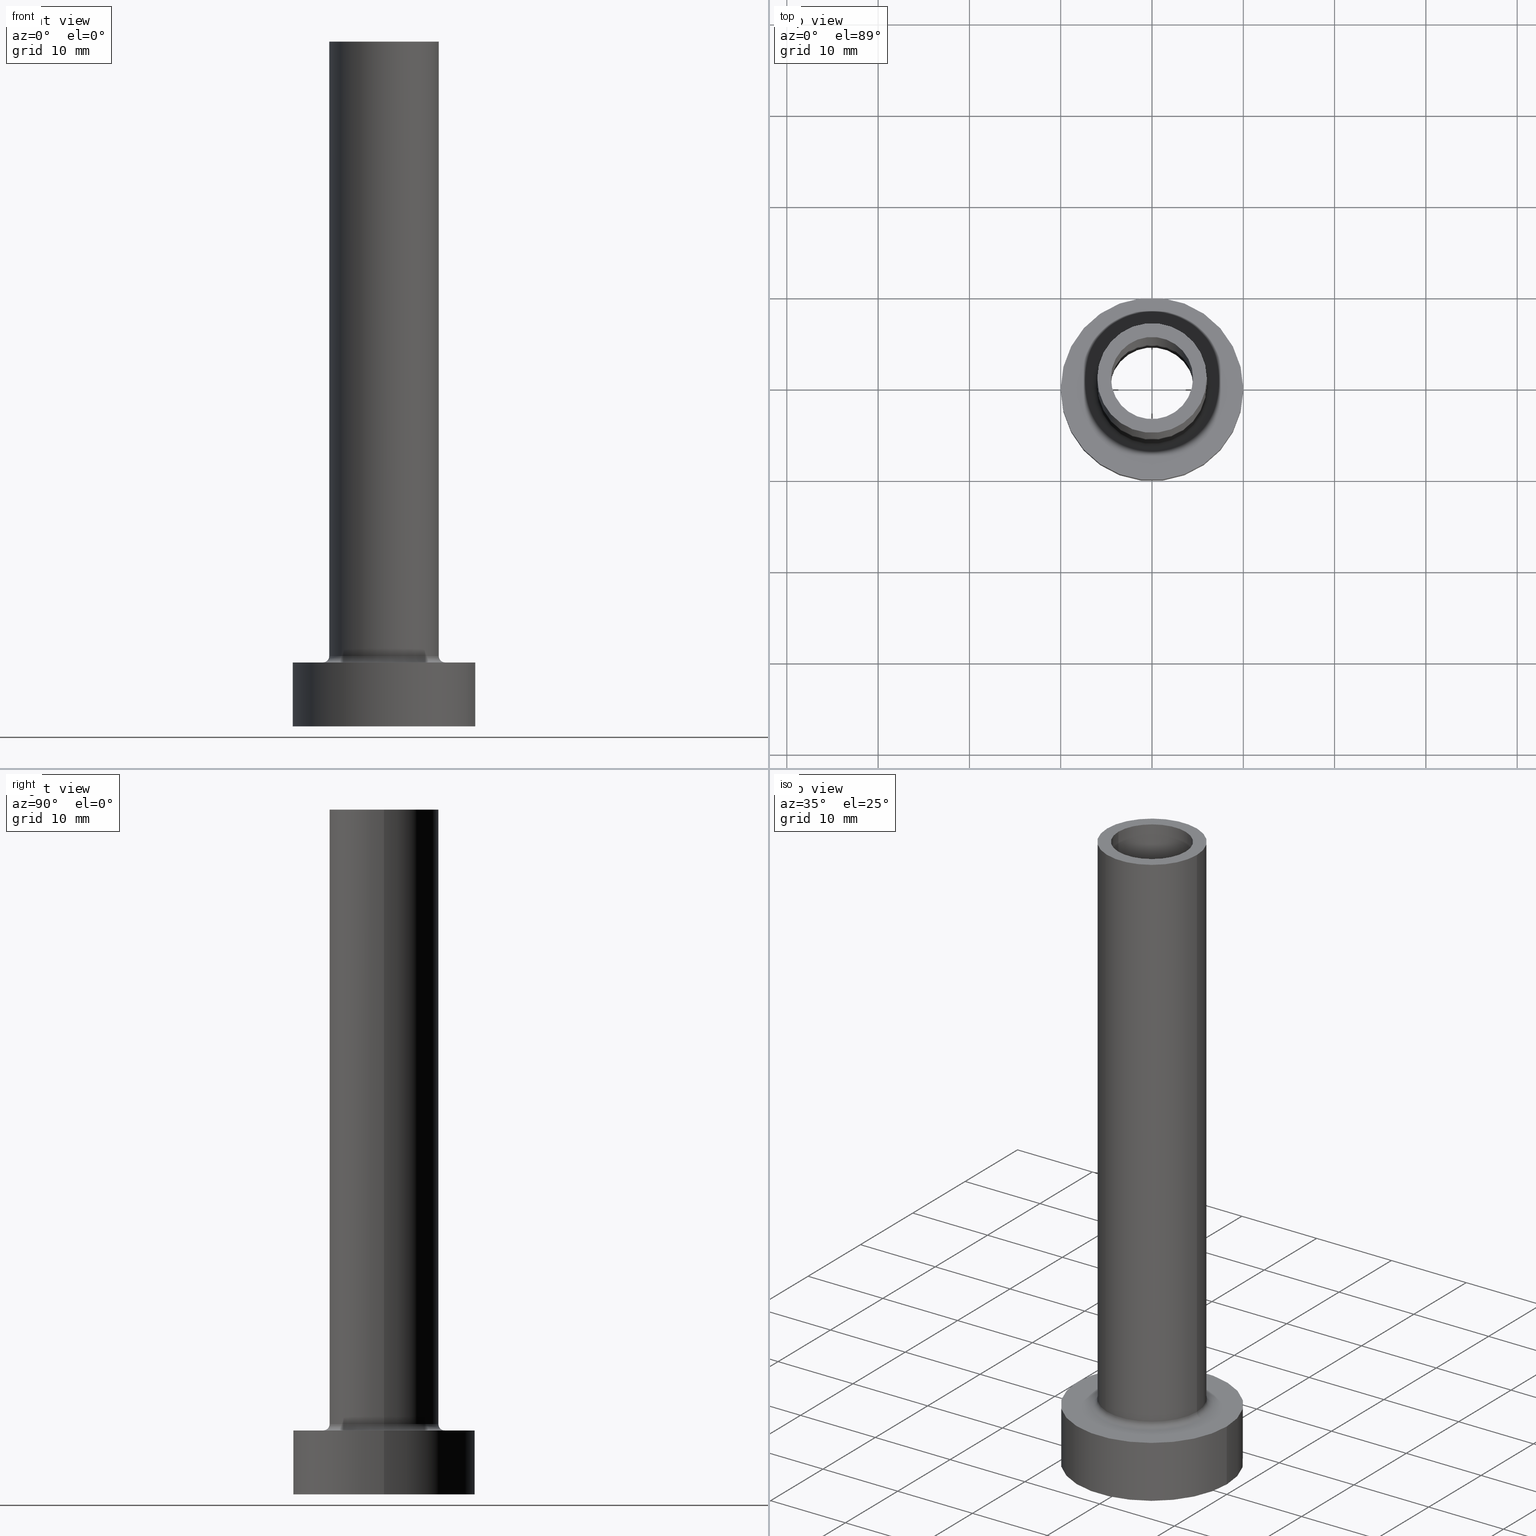
[diagram: canonical four-view strip — front | top / right | iso, engineering-drawing reading convention]
A machine part, canonical four-view strip (front | top / right | iso — engineering-drawing reading convention). The complete STEP part file that produces these views, byte-faithful:
ISO-10303-21;
HEADER;
FILE_DESCRIPTION (( 'STEP AP203' ),
    '1' );
FILE_NAME ('8d70.STEP',
    '2023-02-13T11:04:13',
    ( '' ),
    ( '' ),
    'SwSTEP 2.0',
    'SolidWorks 2019',
    '' );
FILE_SCHEMA (( 'CONFIG_CONTROL_DESIGN' ));
ENDSEC;

DATA;
#1 = EDGE_CURVE ( 'NONE', #113, #174, #399, .T. ) ;
#2 = DIRECTION ( 'NONE',  ( 0.000000000000000000, 0.000000000000000000, 1.000000000000000000 ) ) ;
#3 = VERTEX_POINT ( 'NONE', #38 ) ;
#4 = DIRECTION ( 'NONE',  ( 0.000000000000000000, 0.000000000000000000, 1.000000000000000000 ) ) ;
#5 = DIRECTION ( 'NONE',  ( -1.000000000000000000, 0.000000000000000000, 0.000000000000000000 ) ) ;
#6 = ORIENTED_EDGE ( 'NONE', *, *, #360, .T. ) ;
#7 = EDGE_CURVE ( 'NONE', #74, #300, #407, .T. ) ;
#8 = CARTESIAN_POINT ( 'NONE',  ( 0.000000000000000000, 0.000000000000000000, 75.00000000000001421 ) ) ;
#9 = PRODUCT_DEFINITION_SHAPE ( 'NONE', 'NONE',  #164 ) ;
#10 = COORDINATED_UNIVERSAL_TIME_OFFSET ( 1, 0, .AHEAD. ) ;
#11 = DIRECTION ( 'NONE',  ( 0.000000000000000000, 0.000000000000000000, 1.000000000000000000 ) ) ;
#12 = CARTESIAN_POINT ( 'NONE',  ( 0.000000000000000000, 0.000000000000000000, 0.000000000000000000 ) ) ;
#13 = ORIENTED_EDGE ( 'NONE', *, *, #341, .T. ) ;
#14 = FACE_OUTER_BOUND ( 'NONE', #211, .T. ) ;
#15 = EDGE_CURVE ( 'NONE', #172, #136, #246, .T. ) ;
#16 = AXIS2_PLACEMENT_3D ( 'NONE', #168, #448, #234 ) ;
#17 = DIRECTION ( 'NONE',  ( -0.000000000000000000, -0.000000000000000000, -1.000000000000000000 ) ) ;
#18 = CARTESIAN_POINT ( 'NONE',  ( 0.000000000000000000, 0.000000000000000000, 43.15218613006980064 ) ) ;
#19 = ORIENTED_EDGE ( 'NONE', *, *, #426, .F. ) ;
#20 = EDGE_CURVE ( 'NONE', #174, #113, #126, .T. ) ;
#21 = DIRECTION ( 'NONE',  ( -1.000000000000000000, 0.000000000000000000, 0.000000000000000000 ) ) ;
#22 = CARTESIAN_POINT ( 'NONE',  ( 0.000000000000000000, 0.000000000000000000, 7.000000000000000000 ) ) ;
#23 = PERSON_AND_ORGANIZATION ( #155, #36 ) ;
#24 = FACE_OUTER_BOUND ( 'NONE', #241, .T. ) ;
#25 = ADVANCED_BREP_SHAPE_REPRESENTATION ( '8d70', ( #404, #207 ), #193 ) ;
#26 = CIRCLE ( 'NONE', #185, 4.500000000000000000 ) ;
#27 = FACE_OUTER_BOUND ( 'NONE', #346, .T. ) ;
#28 = EDGE_CURVE ( 'NONE', #86, #349, #459, .T. ) ;
#29 = ORIENTED_EDGE ( 'NONE', *, *, #141, .T. ) ;
#30 = CARTESIAN_POINT ( 'NONE',  ( 0.000000000000000000, 0.000000000000000000, 7.000000000000000000 ) ) ;
#31 = ORIENTED_EDGE ( 'NONE', *, *, #323, .T. ) ;
#32 = DESIGN_CONTEXT ( 'detailed design', #253, 'design' ) ;
#33 = DIRECTION ( 'NONE',  ( 1.000000000000000000, 0.000000000000000000, 0.000000000000000000 ) ) ;
#34 = EDGE_LOOP ( 'NONE', ( #56, #68, #6, #461 ) ) ;
#35 = EDGE_CURVE ( 'NONE', #330, #441, #316, .T. ) ;
#36 = ORGANIZATION ( 'NEUR�EN�', 'NEUR�EN�', '' ) ;
#37 = CIRCLE ( 'NONE', #293, 4.650000000000000355 ) ;
#38 = CARTESIAN_POINT ( 'NONE',  ( -6.000000000000000888, 0.000000000000000000, 7.699999999999998401 ) ) ;
#39 = AXIS2_PLACEMENT_3D ( 'NONE', #208, #279, #345 ) ;
#40 = ORIENTED_EDGE ( 'NONE', *, *, #35, .T. ) ;
#41 = DIRECTION ( 'NONE',  ( 1.000000000000000000, 0.000000000000000000, -0.000000000000000000 ) ) ;
#42 = VERTEX_POINT ( 'NONE', #179 ) ;
#43 = APPROVAL_STATUS ( 'not_yet_approved' ) ;
#44 = DIRECTION ( 'NONE',  ( 0.000000000000000000, 0.000000000000000000, -1.000000000000000000 ) ) ;
#45 = CC_DESIGN_DATE_AND_TIME_ASSIGNMENT ( #259, #153, ( #398 ) ) ;
#46 = CARTESIAN_POINT ( 'NONE',  ( 10.00000000000000000, 1.224646799147353256E-15, 7.000000000000000000 ) ) ;
#47 = PERSON_AND_ORGANIZATION ( #155, #36 ) ;
#48 = CARTESIAN_POINT ( 'NONE',  ( 0.000000000000000000, 0.000000000000000000, 30.00000000000001421 ) ) ;
#49 = DIRECTION ( 'NONE',  ( 0.000000000000000000, 0.000000000000000000, -1.000000000000000000 ) ) ;
#50 = EDGE_CURVE ( 'NONE', #3, #391, #178, .T. ) ;
#51 = CYLINDRICAL_SURFACE ( 'NONE', #152, 4.650000000000000355 ) ;
#52 = APPROVAL_PERSON_ORGANIZATION ( #47, #263, #76 ) ;
#53 = ORIENTED_EDGE ( 'NONE', *, *, #20, .F. ) ;
#54 = AXIS2_PLACEMENT_3D ( 'NONE', #327, #80, #294 ) ;
#55 = SECURITY_CLASSIFICATION_LEVEL ( 'unclassified' ) ;
#56 = ORIENTED_EDGE ( 'NONE', *, *, #157, .F. ) ;
#57 = CC_DESIGN_PERSON_AND_ORGANIZATION_ASSIGNMENT ( #79, #321, ( #335 ) ) ;
#58 = CARTESIAN_POINT ( 'NONE',  ( 0.000000000000000000, 0.000000000000000000, 75.00000000000001421 ) ) ;
#59 = AXIS2_PLACEMENT_3D ( 'NONE', #107, #69, #216 ) ;
#60 = CC_DESIGN_DATE_AND_TIME_ASSIGNMENT ( #96, #142, ( #164 ) ) ;
#61 = CARTESIAN_POINT ( 'NONE',  ( 6.700000000000001066, 0.000000000000000000, 6.999999999999999112 ) ) ;
#62 = ORIENTED_EDGE ( 'NONE', *, *, #1, .F. ) ;
#63 = CIRCLE ( 'NONE', #39, 6.000000000000000888 ) ;
#64 = CARTESIAN_POINT ( 'NONE',  ( -4.650000000000000355, 0.000000000000000000, 30.00000000000001421 ) ) ;
#65 = ORIENTED_EDGE ( 'NONE', *, *, #50, .T. ) ;
#66 = CARTESIAN_POINT ( 'NONE',  ( -6.700000000000001066, 8.205133554287267548E-16, 7.699999999999998401 ) ) ;
#67 = EDGE_CURVE ( 'NONE', #274, #125, #37, .T. ) ;
#68 = ORIENTED_EDGE ( 'NONE', *, *, #67, .T. ) ;
#69 = DIRECTION ( 'NONE',  ( -0.000000000000000000, -0.000000000000000000, -1.000000000000000000 ) ) ;
#70 = ORIENTED_EDGE ( 'NONE', *, *, #235, .F. ) ;
#71 = CC_DESIGN_APPROVAL ( #123, ( #164 ) ) ;
#72 = CARTESIAN_POINT ( 'NONE',  ( 0.000000000000000000, 0.000000000000000000, 0.000000000000000000 ) ) ;
#73 = AXIS2_PLACEMENT_3D ( 'NONE', #48, #395, #191 ) ;
#74 = VERTEX_POINT ( 'NONE', #240 ) ;
#75 = FACE_OUTER_BOUND ( 'NONE', #378, .T. ) ;
#76 = APPROVAL_ROLE ( '' ) ;
#77 = ADVANCED_FACE ( 'NONE', ( #27 ), #173, .T. ) ;
#78 = DIRECTION ( 'NONE',  ( 1.000000000000000000, 0.000000000000000000, 0.000000000000000000 ) ) ;
#79 = PERSON_AND_ORGANIZATION ( #155, #36 ) ;
#80 = DIRECTION ( 'NONE',  ( 0.000000000000000000, -1.000000000000000000, 0.000000000000000000 ) ) ;
#81 = VECTOR ( 'NONE', #120, 1000.000000000000000 ) ;
#82 = PERSON_AND_ORGANIZATION ( #155, #36 ) ;
#83 = CARTESIAN_POINT ( 'NONE',  ( 0.000000000000000000, 0.000000000000000000, 7.699999999999998401 ) ) ;
#84 = EDGE_CURVE ( 'NONE', #300, #172, #204, .T. ) ;
#85 = DIRECTION ( 'NONE',  ( -1.000000000000000000, 0.000000000000000000, 0.000000000000000000 ) ) ;
#86 = VERTEX_POINT ( 'NONE', #452 ) ;
#87 = VECTOR ( 'NONE', #17, 1000.000000000000000 ) ;
#88 = ORIENTED_EDGE ( 'NONE', *, *, #189, .F. ) ;
#89 = CC_DESIGN_PERSON_AND_ORGANIZATION_ASSIGNMENT ( #23, #347, ( #164 ) ) ;
#90 = LINE ( 'NONE', #165, #270 ) ;
#91 = ORIENTED_EDGE ( 'NONE', *, *, #225, .F. ) ;
#92 = DIRECTION ( 'NONE',  ( 0.000000000000000000, 0.000000000000000000, -1.000000000000000000 ) ) ;
#93 = DIRECTION ( 'NONE',  ( -0.000000000000000000, -0.000000000000000000, -1.000000000000000000 ) ) ;
#94 = VECTOR ( 'NONE', #98, 1000.000000000000000 ) ;
#95 = ADVANCED_FACE ( 'NONE', ( #460 ), #244, .T. ) ;
#96 = DATE_AND_TIME ( #101, #331 ) ;
#97 = CARTESIAN_POINT ( 'NONE',  ( 0.000000000000000000, 0.000000000000000000, 7.699999999999998401 ) ) ;
#98 = DIRECTION ( 'NONE',  ( -0.000000000000000000, -0.000000000000000000, -1.000000000000000000 ) ) ;
#99 = ORIENTED_EDGE ( 'NONE', *, *, #84, .F. ) ;
#100 = CC_DESIGN_APPROVAL ( #283, ( #335 ) ) ;
#101 = CALENDAR_DATE ( 2023, 13, 2 ) ;
#102 = ADVANCED_FACE ( 'NONE', ( #24 ), #166, .F. ) ;
#103 = CARTESIAN_POINT ( 'NONE',  ( 0.000000000000000000, 0.000000000000000000, 7.699999999999998401 ) ) ;
#104 = VERTEX_POINT ( 'NONE', #61 ) ;
#105 = APPROVAL_DATE_TIME ( #421, #123 ) ;
#106 = CARTESIAN_POINT ( 'NONE',  ( 0.000000000000000000, 0.000000000000000000, 75.00000000000001421 ) ) ;
#107 = CARTESIAN_POINT ( 'NONE',  ( 0.000000000000000000, 0.000000000000000000, 0.000000000000000000 ) ) ;
#108 = LOCAL_TIME ( 12, 4, 13.00000000000000000, #197 ) ;
#109 = DIRECTION ( 'NONE',  ( 0.000000000000000000, 0.000000000000000000, 1.000000000000000000 ) ) ;
#110 = ORIENTED_EDGE ( 'NONE', *, *, #67, .F. ) ;
#111 = EDGE_CURVE ( 'NONE', #430, #338, #63, .T. ) ;
#112 = FACE_OUTER_BOUND ( 'NONE', #285, .T. ) ;
#113 = VERTEX_POINT ( 'NONE', #170 ) ;
#114 = PERSON_AND_ORGANIZATION ( #155, #36 ) ;
#115 = FACE_BOUND ( 'NONE', #409, .T. ) ;
#116 = CARTESIAN_POINT ( 'NONE',  ( 0.000000000000000000, 0.000000000000000000, 75.00000000000001421 ) ) ;
#117 = EDGE_CURVE ( 'NONE', #338, #3, #139, .T. ) ;
#118 = AXIS2_PLACEMENT_3D ( 'NONE', #30, #351, #377 ) ;
#119 = EDGE_LOOP ( 'NONE', ( #91, #110 ) ) ;
#120 = DIRECTION ( 'NONE',  ( 0.000000000000000000, 0.000000000000000000, -1.000000000000000000 ) ) ;
#121 =( LENGTH_UNIT ( ) NAMED_UNIT ( * ) SI_UNIT ( .MILLI., .METRE. ) );
#122 = ORIENTED_EDGE ( 'NONE', *, *, #141, .F. ) ;
#123 = APPROVAL ( #450, 'NEUR�EN�' ) ;
#124 =( NAMED_UNIT ( * ) PLANE_ANGLE_UNIT ( ) SI_UNIT ( $, .RADIAN. ) );
#125 = VERTEX_POINT ( 'NONE', #64 ) ;
#126 = CIRCLE ( 'NONE', #281, 10.00000000000000000 ) ;
#127 = CIRCLE ( 'NONE', #383, 6.000000000000000888 ) ;
#128 = CARTESIAN_POINT ( 'NONE',  ( 0.000000000000000000, 0.000000000000000000, 75.00000000000001421 ) ) ;
#129 = VECTOR ( 'NONE', #49, 1000.000000000000000 ) ;
#130 = AXIS2_PLACEMENT_3D ( 'NONE', #18, #265, #440 ) ;
#131 = CARTESIAN_POINT ( 'NONE',  ( 0.000000000000000000, 0.000000000000000000, 75.00000000000001421 ) ) ;
#132 = CYLINDRICAL_SURFACE ( 'NONE', #428, 4.500000000000000000 ) ;
#133 = CC_DESIGN_PERSON_AND_ORGANIZATION_ASSIGNMENT ( #82, #291, ( #398 ) ) ;
#134 = CIRCLE ( 'NONE', #337, 4.650000000000000355 ) ;
#135 = CARTESIAN_POINT ( 'NONE',  ( 0.000000000000000000, 0.000000000000000000, 75.00000000000001421 ) ) ;
#136 = VERTEX_POINT ( 'NONE', #419 ) ;
#137 = AXIS2_PLACEMENT_3D ( 'NONE', #288, #402, #227 ) ;
#138 = DATE_AND_TIME ( #344, #243 ) ;
#139 = LINE ( 'NONE', #417, #94 ) ;
#140 = ORIENTED_EDGE ( 'NONE', *, *, #406, .F. ) ;
#141 = EDGE_CURVE ( 'NONE', #391, #3, #127, .T. ) ;
#142 = DATE_TIME_ROLE ( 'creation_date' ) ;
#143 = DIRECTION ( 'NONE',  ( -1.000000000000000000, 0.000000000000000000, 0.000000000000000000 ) ) ;
#144 = ORIENTED_EDGE ( 'NONE', *, *, #20, .T. ) ;
#145 = TOROIDAL_SURFACE ( 'NONE', #451, 6.700000000000001066, 0.6999999999999999556 ) ;
#146 = DIRECTION ( 'NONE',  ( -0.000000000000000000, -0.000000000000000000, -1.000000000000000000 ) ) ;
#147 = ORIENTED_EDGE ( 'NONE', *, *, #225, .T. ) ;
#148 = EDGE_LOOP ( 'NONE', ( #151, #457 ) ) ;
#149 = CARTESIAN_POINT ( 'NONE',  ( 0.000000000000000000, 0.000000000000000000, 30.00000000000001421 ) ) ;
#150 = EDGE_CURVE ( 'NONE', #3, #42, #260, .T. ) ;
#151 = ORIENTED_EDGE ( 'NONE', *, *, #7, .F. ) ;
#152 = AXIS2_PLACEMENT_3D ( 'NONE', #297, #194, #161 ) ;
#153 = DATE_TIME_ROLE ( 'classification_date' ) ;
#154 = FACE_OUTER_BOUND ( 'NONE', #219, .T. ) ;
#155 = PERSON ( 'NEUR�EN�', 'NEUR�EN�', 'NEUR�EN�', ('NEUR�EN�'), ('NEUR�EN�'), ('NEUR�EN�') ) ;
#156 = CARTESIAN_POINT ( 'NONE',  ( 4.650000000000000355, 5.694607616035192869E-16, 43.15218613006980064 ) ) ;
#157 = EDGE_CURVE ( 'NONE', #274, #86, #357, .T. ) ;
#158 = CARTESIAN_POINT ( 'NONE',  ( 0.000000000000000000, 0.000000000000000000, 7.000000000000000000 ) ) ;
#159 = LINE ( 'NONE', #361, #129 ) ;
#160 = AXIS2_PLACEMENT_3D ( 'NONE', #135, #146, #311 ) ;
#161 = DIRECTION ( 'NONE',  ( -1.000000000000000000, 0.000000000000000000, 0.000000000000000000 ) ) ;
#162 = ORIENTED_EDGE ( 'NONE', *, *, #111, .F. ) ;
#163 = FACE_OUTER_BOUND ( 'NONE', #289, .T. ) ;
#164 = PRODUCT_DEFINITION ( 'NEZN�M�', '', #335, #32 ) ;
#165 = CARTESIAN_POINT ( 'NONE',  ( -10.00000000000000000, 0.000000000000000000, 7.000000000000000000 ) ) ;
#166 = TOROIDAL_SURFACE ( 'NONE', #373, 6.700000000000001066, 0.6999999999999999556 ) ;
#167 = CARTESIAN_POINT ( 'NONE',  ( 10.00000000000000000, 1.224646799147353256E-15, 7.000000000000000000 ) ) ;
#168 = CARTESIAN_POINT ( 'NONE',  ( 0.000000000000000000, 0.000000000000000000, 7.000000000000000000 ) ) ;
#169 = MECHANICAL_CONTEXT ( 'NONE', #442, 'mechanical' ) ;
#170 = CARTESIAN_POINT ( 'NONE',  ( 10.00000000000000000, 1.224646799147353256E-15, 0.000000000000000000 ) ) ;
#171 = EDGE_CURVE ( 'NONE', #136, #172, #332, .T. ) ;
#172 = VERTEX_POINT ( 'NONE', #292 ) ;
#173 = CYLINDRICAL_SURFACE ( 'NONE', #160, 6.000000000000000888 ) ;
#174 = VERTEX_POINT ( 'NONE', #329 ) ;
#175 = APPROVAL_ROLE ( '' ) ;
#176 = CARTESIAN_POINT ( 'NONE',  ( 0.000000000000000000, 0.000000000000000000, 30.00000000000001421 ) ) ;
#177 = ORIENTED_EDGE ( 'NONE', *, *, #84, .T. ) ;
#178 = CIRCLE ( 'NONE', #438, 6.000000000000000888 ) ;
#179 = CARTESIAN_POINT ( 'NONE',  ( -6.700000000000001066, 8.205133554287267548E-16, 6.999999999999999112 ) ) ;
#180 = EDGE_LOOP ( 'NONE', ( #418, #287 ) ) ;
#181 = PRODUCT_RELATED_PRODUCT_CATEGORY ( 'detail', '', ( #423 ) ) ;
#182 = FACE_OUTER_BOUND ( 'NONE', #119, .T. ) ;
#183 = ORIENTED_EDGE ( 'NONE', *, *, #406, .T. ) ;
#184 = FACE_OUTER_BOUND ( 'NONE', #34, .T. ) ;
#185 = AXIS2_PLACEMENT_3D ( 'NONE', #131, #268, #371 ) ;
#186 = CALENDAR_DATE ( 2023, 13, 2 ) ;
#187 = FACE_BOUND ( 'NONE', #180, .T. ) ;
#188 = ORIENTED_EDGE ( 'NONE', *, *, #295, .F. ) ;
#189 = EDGE_CURVE ( 'NONE', #349, #86, #134, .T. ) ;
#190 = APPROVAL_DATE_TIME ( #138, #283 ) ;
#191 = DIRECTION ( 'NONE',  ( 1.000000000000000000, 0.000000000000000000, 0.000000000000000000 ) ) ;
#192 = PLANE ( 'NONE',  #393 ) ;
#193 =( GEOMETRIC_REPRESENTATION_CONTEXT ( 3 ) GLOBAL_UNCERTAINTY_ASSIGNED_CONTEXT ( ( #213 ) ) GLOBAL_UNIT_ASSIGNED_CONTEXT ( ( #121, #124, #367 ) ) REPRESENTATION_CONTEXT ( 'NONE', 'WORKASPACE' ) );
#194 = DIRECTION ( 'NONE',  ( 0.000000000000000000, 0.000000000000000000, -1.000000000000000000 ) ) ;
#195 = EDGE_LOOP ( 'NONE', ( #340, #31 ) ) ;
#196 = DIRECTION ( 'NONE',  ( -0.000000000000000000, -0.000000000000000000, -1.000000000000000000 ) ) ;
#197 = COORDINATED_UNIVERSAL_TIME_OFFSET ( 1, 0, .AHEAD. ) ;
#198 = DIRECTION ( 'NONE',  ( -0.000000000000000000, -0.000000000000000000, -1.000000000000000000 ) ) ;
#199 = EDGE_LOOP ( 'NONE', ( #232, #422, #312, #140 ) ) ;
#200 = LINE ( 'NONE', #372, #229 ) ;
#201 = AXIS2_PLACEMENT_3D ( 'NONE', #249, #2, #33 ) ;
#202 = DIRECTION ( 'NONE',  ( 0.000000000000000000, 0.000000000000000000, -1.000000000000000000 ) ) ;
#203 = DIRECTION ( 'NONE',  ( 1.000000000000000000, 0.000000000000000000, 0.000000000000000000 ) ) ;
#204 = LINE ( 'NONE', #343, #353 ) ;
#205 = COORDINATED_UNIVERSAL_TIME_OFFSET ( 1, 0, .AHEAD. ) ;
#206 = ADVANCED_FACE ( 'NONE', ( #322 ), #145, .F. ) ;
#207 = AXIS2_PLACEMENT_3D ( 'NONE', #308, #380, #203 ) ;
#208 = CARTESIAN_POINT ( 'NONE',  ( 0.000000000000000000, 0.000000000000000000, 75.00000000000001421 ) ) ;
#209 = PERSON_AND_ORGANIZATION ( #155, #36 ) ;
#210 = DIRECTION ( 'NONE',  ( 1.000000000000000000, 0.000000000000000000, 0.000000000000000000 ) ) ;
#211 = EDGE_LOOP ( 'NONE', ( #19, #70, #320, #65 ) ) ;
#212 = CIRCLE ( 'NONE', #16, 6.700000000000001066 ) ;
#213 = UNCERTAINTY_MEASURE_WITH_UNIT (LENGTH_MEASURE( 1.000000000000000082E-05 ), #121, 'distance_accuracy_value', 'NONE');
#214 = DIRECTION ( 'NONE',  ( 1.224646799147353207E-16, 1.000000000000000000, -0.000000000000000000 ) ) ;
#215 = ORIENTED_EDGE ( 'NONE', *, *, #50, .F. ) ;
#216 = DIRECTION ( 'NONE',  ( 1.000000000000000000, 0.000000000000000000, 0.000000000000000000 ) ) ;
#217 = EDGE_CURVE ( 'NONE', #391, #104, #400, .T. ) ;
#218 = PLANE ( 'NONE',  #296 ) ;
#219 = EDGE_LOOP ( 'NONE', ( #13, #40 ) ) ;
#220 = AXIS2_PLACEMENT_3D ( 'NONE', #12, #359, #41 ) ;
#221 = DATE_AND_TIME ( #186, #108 ) ;
#222 = CYLINDRICAL_SURFACE ( 'NONE', #434, 4.500000000000000000 ) ;
#223 = EDGE_LOOP ( 'NONE', ( #324, #122, #310, #355 ) ) ;
#224 = LINE ( 'NONE', #46, #273 ) ;
#225 = EDGE_CURVE ( 'NONE', #125, #274, #307, .T. ) ;
#226 = DIRECTION ( 'NONE',  ( 0.000000000000000000, 0.000000000000000000, 1.000000000000000000 ) ) ;
#227 = DIRECTION ( 'NONE',  ( 1.000000000000000000, 0.000000000000000000, -0.000000000000000000 ) ) ;
#228 = LINE ( 'NONE', #334, #87 ) ;
#229 = VECTOR ( 'NONE', #202, 1000.000000000000000 ) ;
#230 = ADVANCED_FACE ( 'NONE', ( #262, #154 ), #218, .T. ) ;
#231 = DIRECTION ( 'NONE',  ( -0.000000000000000000, -0.000000000000000000, -1.000000000000000000 ) ) ;
#232 = ORIENTED_EDGE ( 'NONE', *, *, #35, .F. ) ;
#233 = CARTESIAN_POINT ( 'NONE',  ( 6.000000000000000888, 7.347880794884120722E-16, 75.00000000000001421 ) ) ;
#234 = DIRECTION ( 'NONE',  ( 1.000000000000000000, 0.000000000000000000, 0.000000000000000000 ) ) ;
#235 = EDGE_CURVE ( 'NONE', #338, #430, #413, .T. ) ;
#236 = DIRECTION ( 'NONE',  ( 1.000000000000000000, 0.000000000000000000, 0.000000000000000000 ) ) ;
#237 = PERSON_AND_ORGANIZATION ( #155, #36 ) ;
#238 = ORIENTED_EDGE ( 'NONE', *, *, #426, .T. ) ;
#239 = PERSON_AND_ORGANIZATION ( #155, #36 ) ;
#240 = CARTESIAN_POINT ( 'NONE',  ( -4.500000000000000000, 0.000000000000000000, 75.00000000000001421 ) ) ;
#241 = EDGE_LOOP ( 'NONE', ( #215, #277, #455, #250 ) ) ;
#242 = ADVANCED_FACE ( 'NONE', ( #115, #112 ), #261, .F. ) ;
#243 = LOCAL_TIME ( 12, 4, 13.00000000000000000, #205 ) ;
#244 = CYLINDRICAL_SURFACE ( 'NONE', #299, 10.00000000000000000 ) ;
#245 = ORIENTED_EDGE ( 'NONE', *, *, #341, .F. ) ;
#246 = CIRCLE ( 'NONE', #201, 4.500000000000000000 ) ;
#247 = DIRECTION ( 'NONE',  ( 0.000000000000000000, 0.000000000000000000, 1.000000000000000000 ) ) ;
#248 = ORIENTED_EDGE ( 'NONE', *, *, #235, .T. ) ;
#249 = CARTESIAN_POINT ( 'NONE',  ( 0.000000000000000000, 0.000000000000000000, 30.00000000000001421 ) ) ;
#250 = ORIENTED_EDGE ( 'NONE', *, *, #217, .F. ) ;
#251 = DIRECTION ( 'NONE',  ( 1.000000000000000000, 0.000000000000000000, 0.000000000000000000 ) ) ;
#252 = LOCAL_TIME ( 12, 4, 13.00000000000000000, #342 ) ;
#253 = APPLICATION_CONTEXT ( 'configuration controlled 3d designs of mechanical parts and assemblies' ) ;
#254 = AXIS2_PLACEMENT_3D ( 'NONE', #66, #214, #350 ) ;
#255 = DIRECTION ( 'NONE',  ( 1.000000000000000000, 0.000000000000000000, -0.000000000000000000 ) ) ;
#256 = EDGE_CURVE ( 'NONE', #330, #113, #224, .T. ) ;
#257 = CARTESIAN_POINT ( 'NONE',  ( 4.650000000000000355, 5.694607616035192869E-16, 30.00000000000001421 ) ) ;
#258 = DIRECTION ( 'NONE',  ( 1.000000000000000000, 0.000000000000000000, 0.000000000000000000 ) ) ;
#259 = DATE_AND_TIME ( #318, #358 ) ;
#260 = CIRCLE ( 'NONE', #254, 0.7000000000000000666 ) ;
#261 = PLANE ( 'NONE',  #220 ) ;
#262 = FACE_BOUND ( 'NONE', #195, .T. ) ;
#263 = APPROVAL ( #43, 'NEUR�EN�' ) ;
#264 = AXIS2_PLACEMENT_3D ( 'NONE', #128, #196, #21 ) ;
#265 = DIRECTION ( 'NONE',  ( 0.000000000000000000, 0.000000000000000000, -1.000000000000000000 ) ) ;
#266 = AXIS2_PLACEMENT_3D ( 'NONE', #106, #425, #272 ) ;
#267 = ORIENTED_EDGE ( 'NONE', *, *, #157, .T. ) ;
#268 = DIRECTION ( 'NONE',  ( 0.000000000000000000, 0.000000000000000000, 1.000000000000000000 ) ) ;
#269 = CARTESIAN_POINT ( 'NONE',  ( 6.000000000000000888, 7.347880794884120722E-16, 7.699999999999998401 ) ) ;
#270 = VECTOR ( 'NONE', #231, 1000.000000000000000 ) ;
#271 = ORIENTED_EDGE ( 'NONE', *, *, #171, .F. ) ;
#272 = DIRECTION ( 'NONE',  ( 1.000000000000000000, 0.000000000000000000, 0.000000000000000000 ) ) ;
#273 = VECTOR ( 'NONE', #396, 1000.000000000000000 ) ;
#274 = VERTEX_POINT ( 'NONE', #257 ) ;
#275 = ADVANCED_FACE ( 'NONE', ( #187, #182 ), #319, .F. ) ;
#276 = DIRECTION ( 'NONE',  ( 0.000000000000000000, 0.000000000000000000, 1.000000000000000000 ) ) ;
#277 = ORIENTED_EDGE ( 'NONE', *, *, #150, .T. ) ;
#278 = AXIS2_PLACEMENT_3D ( 'NONE', #301, #410, #447 ) ;
#279 = DIRECTION ( 'NONE',  ( 0.000000000000000000, 0.000000000000000000, 1.000000000000000000 ) ) ;
#280 = ORIENTED_EDGE ( 'NONE', *, *, #295, .T. ) ;
#281 = AXIS2_PLACEMENT_3D ( 'NONE', #388, #276, #210 ) ;
#282 = APPLICATION_PROTOCOL_DEFINITION ( 'international standard', 'config_control_design', 1994, #253 ) ;
#283 = APPROVAL ( #385, 'NEUR�EN�' ) ;
#284 = DIRECTION ( 'NONE',  ( 0.000000000000000000, 0.000000000000000000, 1.000000000000000000 ) ) ;
#285 = EDGE_LOOP ( 'NONE', ( #53, #62 ) ) ;
#286 = DIRECTION ( 'NONE',  ( 0.000000000000000000, 0.000000000000000000, 1.000000000000000000 ) ) ;
#287 = ORIENTED_EDGE ( 'NONE', *, *, #15, .T. ) ;
#288 = CARTESIAN_POINT ( 'NONE',  ( 0.000000000000000000, 0.000000000000000000, 30.00000000000001421 ) ) ;
#289 = EDGE_LOOP ( 'NONE', ( #436, #245, #183, #144 ) ) ;
#290 = CC_DESIGN_SECURITY_CLASSIFICATION ( #398, ( #335 ) ) ;
#291 = PERSON_AND_ORGANIZATION_ROLE ( 'classification_officer' ) ;
#292 = CARTESIAN_POINT ( 'NONE',  ( 4.500000000000000000, 5.510910596163087583E-16, 30.00000000000001421 ) ) ;
#293 = AXIS2_PLACEMENT_3D ( 'NONE', #176, #390, #454 ) ;
#294 = DIRECTION ( 'NONE',  ( 0.000000000000000000, 0.000000000000000000, -1.000000000000000000 ) ) ;
#295 = EDGE_CURVE ( 'NONE', #74, #136, #159, .T. ) ;
#296 = AXIS2_PLACEMENT_3D ( 'NONE', #158, #226, #354 ) ;
#297 = CARTESIAN_POINT ( 'NONE',  ( 0.000000000000000000, 0.000000000000000000, 43.15218613006980064 ) ) ;
#298 = ADVANCED_FACE ( 'NONE', ( #429, #325 ), #192, .T. ) ;
#299 = AXIS2_PLACEMENT_3D ( 'NONE', #414, #456, #143 ) ;
#300 = VERTEX_POINT ( 'NONE', #392 ) ;
#301 = CARTESIAN_POINT ( 'NONE',  ( 0.000000000000000000, 0.000000000000000000, 7.000000000000000000 ) ) ;
#302 = CARTESIAN_POINT ( 'NONE',  ( -4.650000000000000355, 0.000000000000000000, 0.000000000000000000 ) ) ;
#303 = PERSON_AND_ORGANIZATION_ROLE ( 'design_owner' ) ;
#304 = AXIS2_PLACEMENT_3D ( 'NONE', #22, #198, #403 ) ;
#305 = DIRECTION ( 'NONE',  ( 1.000000000000000000, 0.000000000000000000, 0.000000000000000000 ) ) ;
#306 = ADVANCED_FACE ( 'NONE', ( #75 ), #222, .F. ) ;
#307 = CIRCLE ( 'NONE', #366, 4.650000000000000355 ) ;
#308 = CARTESIAN_POINT ( 'NONE',  ( 0.000000000000000000, 0.000000000000000000, 0.000000000000000000 ) ) ;
#309 = DIRECTION ( 'NONE',  ( 1.000000000000000000, 0.000000000000000000, 0.000000000000000000 ) ) ;
#310 = ORIENTED_EDGE ( 'NONE', *, *, #217, .T. ) ;
#311 = DIRECTION ( 'NONE',  ( -1.000000000000000000, 0.000000000000000000, 0.000000000000000000 ) ) ;
#312 = ORIENTED_EDGE ( 'NONE', *, *, #1, .T. ) ;
#313 = ADVANCED_FACE ( 'NONE', ( #184 ), #411, .F. ) ;
#314 = APPLICATION_PROTOCOL_DEFINITION ( 'international standard', 'config_control_design', 1994, #442 ) ;
#315 = DIRECTION ( 'NONE',  ( 0.000000000000000000, 0.000000000000000000, -1.000000000000000000 ) ) ;
#316 = CIRCLE ( 'NONE', #118, 10.00000000000000000 ) ;
#317 = CARTESIAN_POINT ( 'NONE',  ( 0.000000000000000000, 0.000000000000000000, 7.699999999999998401 ) ) ;
#318 = CALENDAR_DATE ( 2023, 13, 2 ) ;
#319 = PLANE ( 'NONE',  #137 ) ;
#320 = ORIENTED_EDGE ( 'NONE', *, *, #117, .T. ) ;
#321 = PERSON_AND_ORGANIZATION_ROLE ( 'creator' ) ;
#322 = FACE_OUTER_BOUND ( 'NONE', #223, .T. ) ;
#323 = EDGE_CURVE ( 'NONE', #42, #104, #212, .T. ) ;
#324 = ORIENTED_EDGE ( 'NONE', *, *, #150, .F. ) ;
#325 = FACE_OUTER_BOUND ( 'NONE', #387, .T. ) ;
#326 = AXIS2_PLACEMENT_3D ( 'NONE', #116, #4, #258 ) ;
#327 = CARTESIAN_POINT ( 'NONE',  ( 6.700000000000001066, 0.000000000000000000, 7.699999999999998401 ) ) ;
#328 = CC_DESIGN_PERSON_AND_ORGANIZATION_ASSIGNMENT ( #237, #303, ( #423 ) ) ;
#329 = CARTESIAN_POINT ( 'NONE',  ( -10.00000000000000000, 0.000000000000000000, 0.000000000000000000 ) ) ;
#330 = VERTEX_POINT ( 'NONE', #167 ) ;
#331 = LOCAL_TIME ( 12, 4, 13.00000000000000000, #453 ) ;
#332 = CIRCLE ( 'NONE', #73, 4.500000000000000000 ) ;
#333 = CARTESIAN_POINT ( 'NONE',  ( 0.000000000000000000, 0.000000000000000000, 7.000000000000000000 ) ) ;
#334 = CARTESIAN_POINT ( 'NONE',  ( 6.000000000000000888, 7.347880794884120722E-16, 75.00000000000001421 ) ) ;
#335 = PRODUCT_DEFINITION_FORMATION_WITH_SPECIFIED_SOURCE ( 'LIBOVOLN�', '', #423, .NOT_KNOWN. ) ;
#336 = CYLINDRICAL_SURFACE ( 'NONE', #264, 6.000000000000000888 ) ;
#337 = AXIS2_PLACEMENT_3D ( 'NONE', #72, #439, #437 ) ;
#338 = VERTEX_POINT ( 'NONE', #444 ) ;
#339 = CYLINDRICAL_SURFACE ( 'NONE', #304, 10.00000000000000000 ) ;
#340 = ORIENTED_EDGE ( 'NONE', *, *, #416, .T. ) ;
#341 = EDGE_CURVE ( 'NONE', #441, #330, #427, .T. ) ;
#342 = COORDINATED_UNIVERSAL_TIME_OFFSET ( 1, 0, .AHEAD. ) ;
#343 = CARTESIAN_POINT ( 'NONE',  ( 4.500000000000000000, 5.510910596163087583E-16, 75.00000000000001421 ) ) ;
#344 = CALENDAR_DATE ( 2023, 13, 2 ) ;
#345 = DIRECTION ( 'NONE',  ( 1.000000000000000000, 0.000000000000000000, 0.000000000000000000 ) ) ;
#346 = EDGE_LOOP ( 'NONE', ( #162, #238, #29, #370 ) ) ;
#347 = PERSON_AND_ORGANIZATION_ROLE ( 'creator' ) ;
#348 = CARTESIAN_POINT ( 'NONE',  ( 0.000000000000000000, 0.000000000000000000, 0.000000000000000000 ) ) ;
#349 = VERTEX_POINT ( 'NONE', #302 ) ;
#350 = DIRECTION ( 'NONE',  ( -1.000000000000000000, 1.224646799147353454E-16, 0.000000000000000000 ) ) ;
#351 = DIRECTION ( 'NONE',  ( 0.000000000000000000, 0.000000000000000000, 1.000000000000000000 ) ) ;
#352 = ORIENTED_EDGE ( 'NONE', *, *, #381, .T. ) ;
#353 = VECTOR ( 'NONE', #315, 1000.000000000000000 ) ;
#354 = DIRECTION ( 'NONE',  ( 1.000000000000000000, 0.000000000000000000, -0.000000000000000000 ) ) ;
#355 = ORIENTED_EDGE ( 'NONE', *, *, #323, .F. ) ;
#356 = CARTESIAN_POINT ( 'NONE',  ( 0.000000000000000000, 0.000000000000000000, 75.00000000000001421 ) ) ;
#357 = LINE ( 'NONE', #156, #81 ) ;
#358 = LOCAL_TIME ( 12, 4, 13.00000000000000000, #10 ) ;
#359 = DIRECTION ( 'NONE',  ( 0.000000000000000000, 0.000000000000000000, 1.000000000000000000 ) ) ;
#360 = EDGE_CURVE ( 'NONE', #125, #349, #200, .T. ) ;
#361 = CARTESIAN_POINT ( 'NONE',  ( -4.500000000000000000, 0.000000000000000000, 75.00000000000001421 ) ) ;
#362 = ORIENTED_EDGE ( 'NONE', *, *, #15, .F. ) ;
#363 = FACE_OUTER_BOUND ( 'NONE', #449, .T. ) ;
#364 = CC_DESIGN_APPROVAL ( #263, ( #398 ) ) ;
#365 = CLOSED_SHELL ( 'NONE', ( #306, #446, #102, #77, #95, #397, #230, #242, #374, #298, #206, #313, #275, #412 ) ) ;
#366 = AXIS2_PLACEMENT_3D ( 'NONE', #149, #11, #433 ) ;
#367 =( NAMED_UNIT ( * ) SI_UNIT ( $, .STERADIAN. ) SOLID_ANGLE_UNIT ( ) );
#368 = PERSON_AND_ORGANIZATION_ROLE ( 'design_supplier' ) ;
#369 = CARTESIAN_POINT ( 'NONE',  ( -10.00000000000000000, 0.000000000000000000, 7.000000000000000000 ) ) ;
#370 = ORIENTED_EDGE ( 'NONE', *, *, #117, .F. ) ;
#371 = DIRECTION ( 'NONE',  ( 1.000000000000000000, 0.000000000000000000, 0.000000000000000000 ) ) ;
#372 = CARTESIAN_POINT ( 'NONE',  ( -4.650000000000000355, 0.000000000000000000, 43.15218613006980064 ) ) ;
#373 = AXIS2_PLACEMENT_3D ( 'NONE', #97, #382, #305 ) ;
#374 = ADVANCED_FACE ( 'NONE', ( #14 ), #336, .T. ) ;
#375 = CALENDAR_DATE ( 2023, 13, 2 ) ;
#376 = APPROVAL_ROLE ( '' ) ;
#377 = DIRECTION ( 'NONE',  ( 1.000000000000000000, 0.000000000000000000, 0.000000000000000000 ) ) ;
#378 = EDGE_LOOP ( 'NONE', ( #424, #177, #271, #188 ) ) ;
#379 = APPROVAL_PERSON_ORGANIZATION ( #239, #283, #376 ) ;
#380 = DIRECTION ( 'NONE',  ( 0.000000000000000000, 0.000000000000000000, 1.000000000000000000 ) ) ;
#381 = EDGE_CURVE ( 'NONE', #300, #74, #26, .T. ) ;
#382 = DIRECTION ( 'NONE',  ( 0.000000000000000000, 0.000000000000000000, 1.000000000000000000 ) ) ;
#383 = AXIS2_PLACEMENT_3D ( 'NONE', #103, #247, #386 ) ;
#384 = EDGE_LOOP ( 'NONE', ( #99, #352, #280, #362 ) ) ;
#385 = APPROVAL_STATUS ( 'not_yet_approved' ) ;
#386 = DIRECTION ( 'NONE',  ( 1.000000000000000000, 0.000000000000000000, 0.000000000000000000 ) ) ;
#387 = EDGE_LOOP ( 'NONE', ( #248, #420 ) ) ;
#388 = CARTESIAN_POINT ( 'NONE',  ( 0.000000000000000000, 0.000000000000000000, 0.000000000000000000 ) ) ;
#389 = CIRCLE ( 'NONE', #458, 6.700000000000001066 ) ;
#390 = DIRECTION ( 'NONE',  ( 0.000000000000000000, 0.000000000000000000, 1.000000000000000000 ) ) ;
#391 = VERTEX_POINT ( 'NONE', #269 ) ;
#392 = CARTESIAN_POINT ( 'NONE',  ( 4.500000000000000000, 5.510910596163087583E-16, 75.00000000000001421 ) ) ;
#393 = AXIS2_PLACEMENT_3D ( 'NONE', #8, #109, #255 ) ;
#394 = ORIENTED_EDGE ( 'NONE', *, *, #360, .F. ) ;
#395 = DIRECTION ( 'NONE',  ( 0.000000000000000000, 0.000000000000000000, 1.000000000000000000 ) ) ;
#396 = DIRECTION ( 'NONE',  ( -0.000000000000000000, -0.000000000000000000, -1.000000000000000000 ) ) ;
#397 = ADVANCED_FACE ( 'NONE', ( #163 ), #339, .T. ) ;
#398 = SECURITY_CLASSIFICATION ( '', '', #55 ) ;
#399 = CIRCLE ( 'NONE', #431, 10.00000000000000000 ) ;
#400 = CIRCLE ( 'NONE', #54, 0.7000000000000000666 ) ;
#401 = SHAPE_DEFINITION_REPRESENTATION ( #9, #25 ) ;
#402 = DIRECTION ( 'NONE',  ( 0.000000000000000000, 0.000000000000000000, 1.000000000000000000 ) ) ;
#403 = DIRECTION ( 'NONE',  ( -1.000000000000000000, 0.000000000000000000, 0.000000000000000000 ) ) ;
#404 = MANIFOLD_SOLID_BREP ( 'Odebrat vysunut�m4', #365 ) ;
#405 = APPROVAL_PERSON_ORGANIZATION ( #209, #123, #175 ) ;
#406 = EDGE_CURVE ( 'NONE', #441, #174, #90, .T. ) ;
#407 = CIRCLE ( 'NONE', #266, 4.500000000000000000 ) ;
#408 = FACE_OUTER_BOUND ( 'NONE', #384, .T. ) ;
#409 = EDGE_LOOP ( 'NONE', ( #88, #415 ) ) ;
#410 = DIRECTION ( 'NONE',  ( 0.000000000000000000, 0.000000000000000000, 1.000000000000000000 ) ) ;
#411 = CYLINDRICAL_SURFACE ( 'NONE', #130, 4.650000000000000355 ) ;
#412 = ADVANCED_FACE ( 'NONE', ( #408 ), #132, .F. ) ;
#413 = CIRCLE ( 'NONE', #326, 6.000000000000000888 ) ;
#414 = CARTESIAN_POINT ( 'NONE',  ( 0.000000000000000000, 0.000000000000000000, 7.000000000000000000 ) ) ;
#415 = ORIENTED_EDGE ( 'NONE', *, *, #28, .F. ) ;
#416 = EDGE_CURVE ( 'NONE', #104, #42, #389, .T. ) ;
#417 = CARTESIAN_POINT ( 'NONE',  ( -6.000000000000000888, 0.000000000000000000, 75.00000000000001421 ) ) ;
#418 = ORIENTED_EDGE ( 'NONE', *, *, #171, .T. ) ;
#419 = CARTESIAN_POINT ( 'NONE',  ( -4.500000000000000000, 0.000000000000000000, 30.00000000000001421 ) ) ;
#420 = ORIENTED_EDGE ( 'NONE', *, *, #111, .T. ) ;
#421 = DATE_AND_TIME ( #375, #252 ) ;
#422 = ORIENTED_EDGE ( 'NONE', *, *, #256, .T. ) ;
#423 = PRODUCT ( '8d70', '8d70', '', ( #169 ) ) ;
#424 = ORIENTED_EDGE ( 'NONE', *, *, #7, .T. ) ;
#425 = DIRECTION ( 'NONE',  ( 0.000000000000000000, 0.000000000000000000, 1.000000000000000000 ) ) ;
#426 = EDGE_CURVE ( 'NONE', #430, #391, #228, .T. ) ;
#427 = CIRCLE ( 'NONE', #278, 10.00000000000000000 ) ;
#428 = AXIS2_PLACEMENT_3D ( 'NONE', #58, #92, #85 ) ;
#429 = FACE_BOUND ( 'NONE', #148, .T. ) ;
#430 = VERTEX_POINT ( 'NONE', #233 ) ;
#431 = AXIS2_PLACEMENT_3D ( 'NONE', #348, #284, #309 ) ;
#432 = APPROVAL_DATE_TIME ( #221, #263 ) ;
#433 = DIRECTION ( 'NONE',  ( 1.000000000000000000, 0.000000000000000000, 0.000000000000000000 ) ) ;
#434 = AXIS2_PLACEMENT_3D ( 'NONE', #356, #44, #5 ) ;
#435 = DIRECTION ( 'NONE',  ( 0.000000000000000000, 0.000000000000000000, 1.000000000000000000 ) ) ;
#436 = ORIENTED_EDGE ( 'NONE', *, *, #256, .F. ) ;
#437 = DIRECTION ( 'NONE',  ( 1.000000000000000000, 0.000000000000000000, 0.000000000000000000 ) ) ;
#438 = AXIS2_PLACEMENT_3D ( 'NONE', #317, #286, #251 ) ;
#439 = DIRECTION ( 'NONE',  ( -0.000000000000000000, -0.000000000000000000, -1.000000000000000000 ) ) ;
#440 = DIRECTION ( 'NONE',  ( -1.000000000000000000, 0.000000000000000000, 0.000000000000000000 ) ) ;
#441 = VERTEX_POINT ( 'NONE', #369 ) ;
#442 = APPLICATION_CONTEXT ( 'configuration controlled 3d designs of mechanical parts and assemblies' ) ;
#443 = CC_DESIGN_PERSON_AND_ORGANIZATION_ASSIGNMENT ( #114, #368, ( #335 ) ) ;
#444 = CARTESIAN_POINT ( 'NONE',  ( -6.000000000000000888, 0.000000000000000000, 75.00000000000001421 ) ) ;
#445 = ORIENTED_EDGE ( 'NONE', *, *, #28, .T. ) ;
#446 = ADVANCED_FACE ( 'NONE', ( #363 ), #51, .F. ) ;
#447 = DIRECTION ( 'NONE',  ( 1.000000000000000000, 0.000000000000000000, 0.000000000000000000 ) ) ;
#448 = DIRECTION ( 'NONE',  ( -0.000000000000000000, -0.000000000000000000, -1.000000000000000000 ) ) ;
#449 = EDGE_LOOP ( 'NONE', ( #147, #267, #445, #394 ) ) ;
#450 = APPROVAL_STATUS ( 'not_yet_approved' ) ;
#451 = AXIS2_PLACEMENT_3D ( 'NONE', #83, #435, #78 ) ;
#452 = CARTESIAN_POINT ( 'NONE',  ( 4.650000000000000355, 5.694607616035192869E-16, 0.000000000000000000 ) ) ;
#453 = COORDINATED_UNIVERSAL_TIME_OFFSET ( 1, 0, .AHEAD. ) ;
#454 = DIRECTION ( 'NONE',  ( 1.000000000000000000, 0.000000000000000000, 0.000000000000000000 ) ) ;
#455 = ORIENTED_EDGE ( 'NONE', *, *, #416, .F. ) ;
#456 = DIRECTION ( 'NONE',  ( -0.000000000000000000, -0.000000000000000000, -1.000000000000000000 ) ) ;
#457 = ORIENTED_EDGE ( 'NONE', *, *, #381, .F. ) ;
#458 = AXIS2_PLACEMENT_3D ( 'NONE', #333, #93, #236 ) ;
#459 = CIRCLE ( 'NONE', #59, 4.650000000000000355 ) ;
#460 = FACE_OUTER_BOUND ( 'NONE', #199, .T. ) ;
#461 = ORIENTED_EDGE ( 'NONE', *, *, #189, .T. ) ;
ENDSEC;
END-ISO-10303-21;
